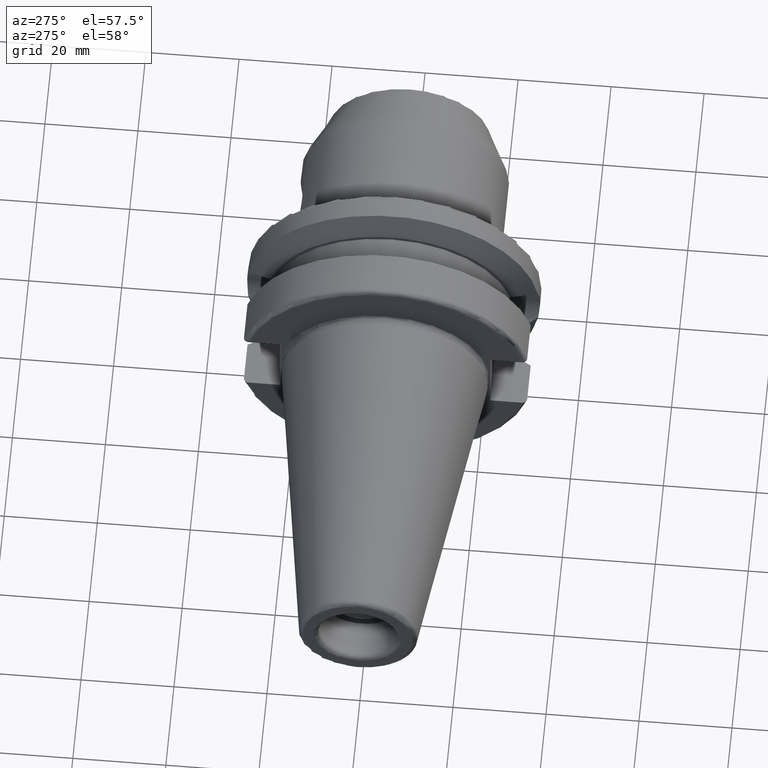
[diagram: clean part render]
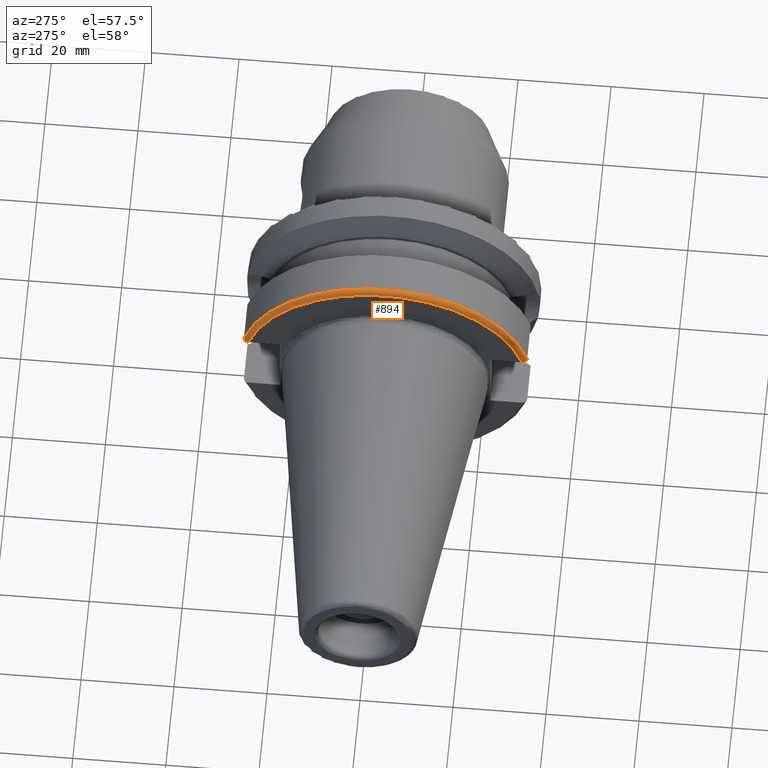
[diagram: same view with one face highlighted and labeled with its STEP entity id]
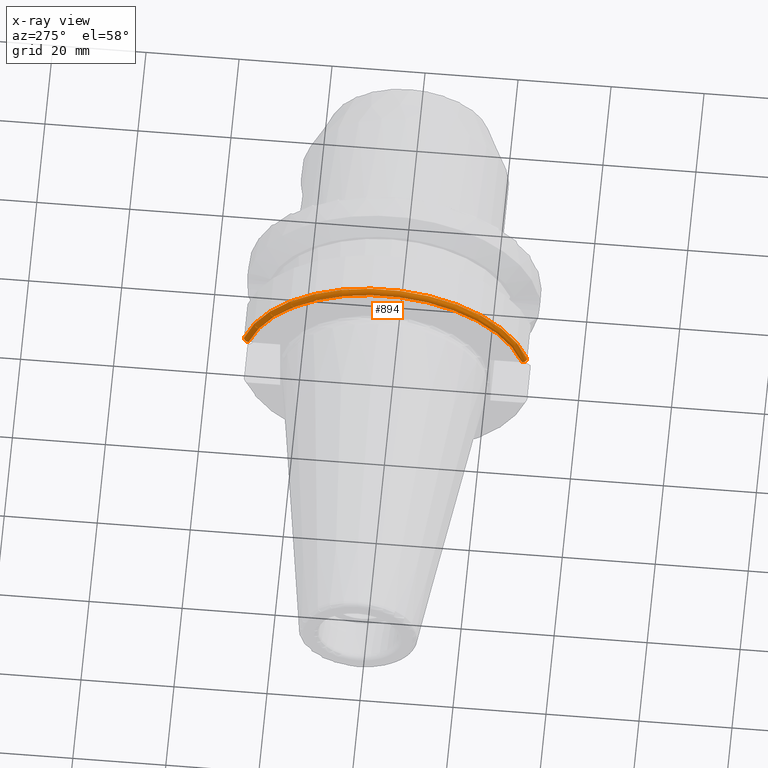
[diagram: x-ray of the same camera — body ghosted, the highlighted face saturated]
A machine part, auxiliary view. The second image highlights one B-rep face of the part: STEP entity #894.
The next image is the same camera in x-ray: the body ghosted, the highlighted face saturated — about 0% of this face is hidden behind the body in this view.
In plain terms, the highlighted toroidal blend (fillet) surface has major radius 30.5 mm and minor (blend) radius 1 mm.
Its self-contained STEP definition (entity closure, byte-faithful):
#40=B_SPLINE_CURVE_WITH_KNOTS('',3,(#1673,#1674,#1675,#1676,#1677,#1678,
#1679,#1680,#1681,#1682),.UNSPECIFIED.,.F.,.F.,(4,2,2,2,4),(-0.150751871388631,
-0.111946181815504,-0.0738743445372396,-0.0366169489027566,0.),
 .UNSPECIFIED.);
#48=B_SPLINE_CURVE_WITH_KNOTS('',3,(#1814,#1815,#1816,#1817,#1818,#1819,
#1820,#1821,#1822,#1823),.UNSPECIFIED.,.F.,.F.,(4,2,2,2,4),(0.,0.0366169489027566,
0.0738743445372396,0.111946181815504,0.150751871388631),.UNSPECIFIED.);
#222=FACE_OUTER_BOUND('',#283,.T.);
#283=EDGE_LOOP('',(#791,#792,#793,#794));
#347=CIRCLE('',#1018,30.5);
#348=CIRCLE('',#1020,31.5);
#401=VERTEX_POINT('',#1670);
#402=VERTEX_POINT('',#1672);
#429=VERTEX_POINT('',#1811);
#430=VERTEX_POINT('',#1813);
#501=EDGE_CURVE('',#402,#401,#40,.T.);
#542=EDGE_CURVE('',#430,#429,#48,.T.);
#563=EDGE_CURVE('',#429,#402,#347,.T.);
#564=EDGE_CURVE('',#430,#401,#348,.T.);
#791=ORIENTED_EDGE('',*,*,#501,.T.);
#792=ORIENTED_EDGE('',*,*,#564,.F.);
#793=ORIENTED_EDGE('',*,*,#542,.T.);
#794=ORIENTED_EDGE('',*,*,#563,.T.);
#851=TOROIDAL_SURFACE('',#1019,30.5,1.00000000000001);
#894=ADVANCED_FACE('',(#222),#851,.T.);
#1018=AXIS2_PLACEMENT_3D('',#1866,#1265,#1266);
#1019=AXIS2_PLACEMENT_3D('',#1867,#1267,#1268);
#1020=AXIS2_PLACEMENT_3D('',#1868,#1269,#1270);
#1265=DIRECTION('center_axis',(1.,0.,0.));
#1266=DIRECTION('ref_axis',(0.,0.,-1.));
#1267=DIRECTION('center_axis',(1.,0.,0.));
#1268=DIRECTION('ref_axis',(0.,-1.22464679914735E-16,1.));
#1269=DIRECTION('center_axis',(1.,0.,0.));
#1270=DIRECTION('ref_axis',(0.,0.,-1.));
#1670=CARTESIAN_POINT('',(2.99999999999999,-30.4540227227866,8.05));
#1672=CARTESIAN_POINT('',(1.99999999999999,-29.4184890842477,8.05));
#1673=CARTESIAN_POINT('Ctrl Pts',(1.99999999999999,-29.4184890842477,8.05));
#1674=CARTESIAN_POINT('Ctrl Pts',(1.99999999999999,-29.5478413828248,8.05));
#1675=CARTESIAN_POINT('Ctrl Pts',(2.02950258743517,-29.7002346307938,8.05));
#1676=CARTESIAN_POINT('Ctrl Pts',(2.12587454939785,-29.9376810968085,8.05));
#1677=CARTESIAN_POINT('Ctrl Pts',(2.2089547883793,-30.0653098968133,8.05));
#1678=CARTESIAN_POINT('Ctrl Pts',(2.38465986426588,-30.2446912007727,8.05));
#1679=CARTESIAN_POINT('Ctrl Pts',(2.50758665841081,-30.3289456947341,8.05));
#1680=CARTESIAN_POINT('Ctrl Pts',(2.73442803339431,-30.4247631098996,8.05));
#1681=CARTESIAN_POINT('Ctrl Pts',(2.87794350365748,-30.4540227227866,8.05));
#1682=CARTESIAN_POINT('Ctrl Pts',(3.,-30.4540227227866,8.05));
#1811=CARTESIAN_POINT('',(1.99999999999999,29.4184890842477,8.05));
#1813=CARTESIAN_POINT('',(2.99999999999999,30.4540227227866,8.05));
#1814=CARTESIAN_POINT('Ctrl Pts',(3.,30.4540227227866,8.05));
#1815=CARTESIAN_POINT('Ctrl Pts',(2.87794350365748,30.4540227227866,8.05));
#1816=CARTESIAN_POINT('Ctrl Pts',(2.73442803339431,30.4247631098996,8.05));
#1817=CARTESIAN_POINT('Ctrl Pts',(2.50758665841081,30.3289456947341,8.05));
#1818=CARTESIAN_POINT('Ctrl Pts',(2.38465986426588,30.2446912007727,8.05));
#1819=CARTESIAN_POINT('Ctrl Pts',(2.2089547883793,30.0653098968133,8.05));
#1820=CARTESIAN_POINT('Ctrl Pts',(2.12587454939785,29.9376810968085,8.05));
#1821=CARTESIAN_POINT('Ctrl Pts',(2.02950258743517,29.7002346307938,8.05));
#1822=CARTESIAN_POINT('Ctrl Pts',(1.99999999999999,29.5478413828248,8.05));
#1823=CARTESIAN_POINT('Ctrl Pts',(1.99999999999999,29.4184890842477,8.05));
#1866=CARTESIAN_POINT('Origin',(1.99999999999999,0.,0.));
#1867=CARTESIAN_POINT('Origin',(3.,0.,0.));
#1868=CARTESIAN_POINT('Origin',(2.99999999999999,0.,0.));